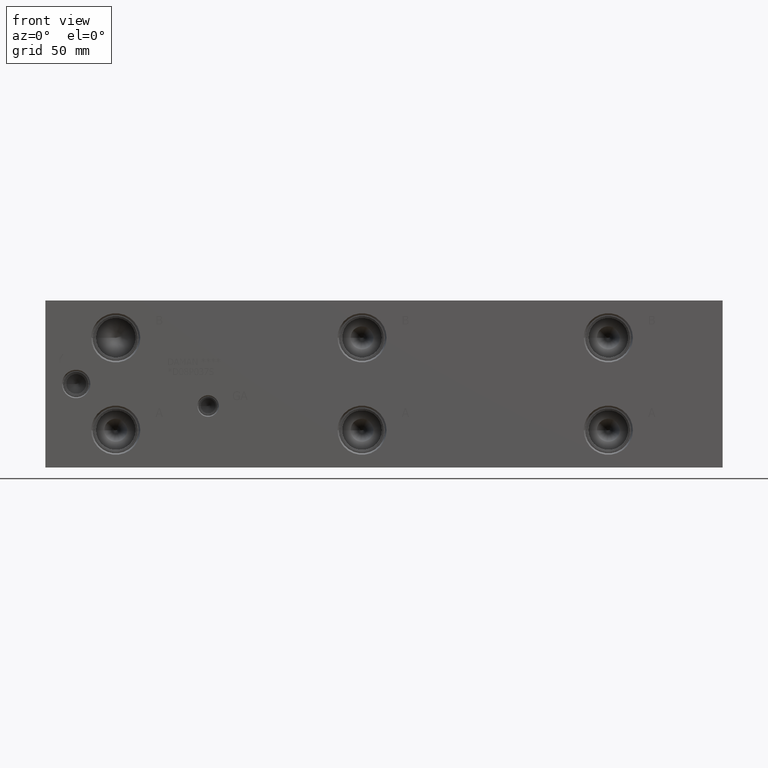
[diagram: clean part render]
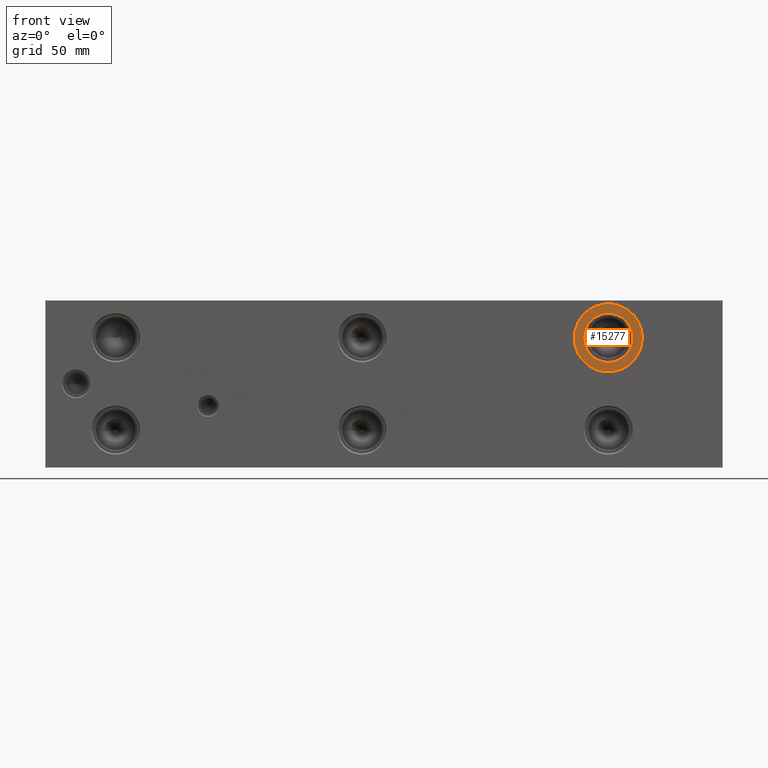
[diagram: same view with one face highlighted and labeled with its STEP entity id]
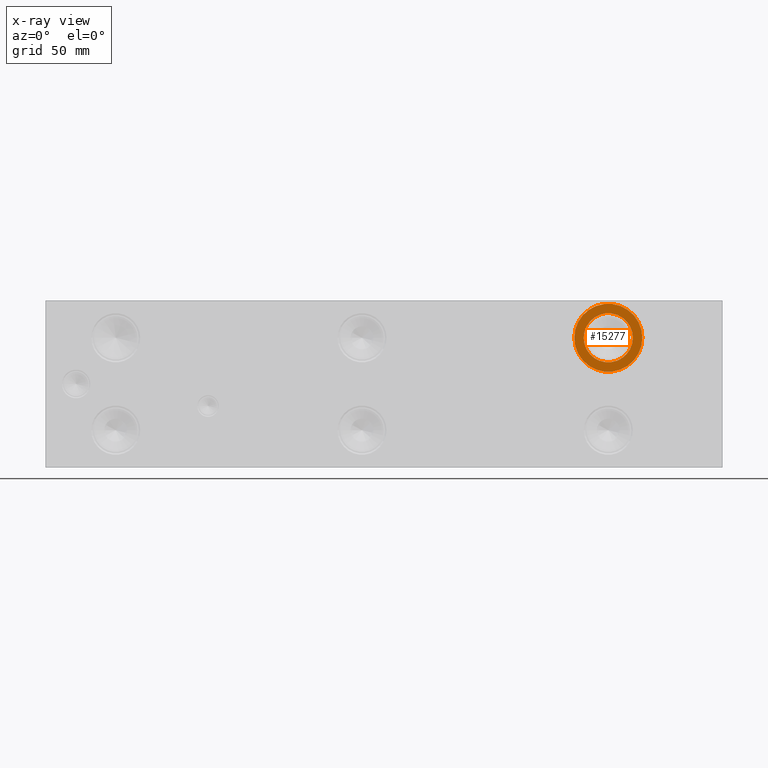
[diagram: x-ray of the same camera — body ghosted, the highlighted face saturated]
A machine part, front view. The second image highlights one B-rep face of the part: STEP entity #15277.
The next image is the same camera in x-ray: the body ghosted, the highlighted face saturated — about 0% of this face is hidden behind the body in this view.
In plain terms, the highlighted planar face has unit normal (0, -1, 0).
Its self-contained STEP definition (entity closure, byte-faithful):
#492=CIRCLE('',#16172,24.5618);
#493=CIRCLE('',#16173,24.5618);
#494=CIRCLE('',#16174,17.7546);
#815=FACE_BOUND('',#2845,.T.);
#1250=PLANE('',#16171);
#1945=FACE_OUTER_BOUND('',#2844,.T.);
#2844=EDGE_LOOP('',(#13174,#13175));
#2845=EDGE_LOOP('',(#13176));
#7239=VERTEX_POINT('',#26021);
#7240=VERTEX_POINT('',#26022);
#7241=VERTEX_POINT('',#26025);
#9304=EDGE_CURVE('',#7239,#7240,#492,.T.);
#9305=EDGE_CURVE('',#7240,#7239,#493,.T.);
#9306=EDGE_CURVE('',#7241,#7241,#494,.T.);
#13174=ORIENTED_EDGE('',*,*,#9304,.T.);
#13175=ORIENTED_EDGE('',*,*,#9305,.T.);
#13176=ORIENTED_EDGE('',*,*,#9306,.F.);
#15277=ADVANCED_FACE('',(#1945,#815),#1250,.T.);
#16171=AXIS2_PLACEMENT_3D('',#26020,#19218,#19219);
#16172=AXIS2_PLACEMENT_3D('',#26023,#19220,#19221);
#16173=AXIS2_PLACEMENT_3D('',#26024,#19222,#19223);
#16174=AXIS2_PLACEMENT_3D('',#26026,#19224,#19225);
#19218=DIRECTION('center_axis',(0.,-1.,0.));
#19219=DIRECTION('ref_axis',(1.,0.,0.));
#19220=DIRECTION('center_axis',(0.,-1.,0.));
#19221=DIRECTION('ref_axis',(1.,0.,0.));
#19222=DIRECTION('center_axis',(0.,-1.,0.));
#19223=DIRECTION('ref_axis',(1.,0.,0.));
#19224=DIRECTION('center_axis',(0.,-1.,0.));
#19225=DIRECTION('ref_axis',(1.,0.,0.));
#26020=CARTESIAN_POINT('Origin',(406.4,0.7874,93.6752));
#26021=CARTESIAN_POINT('',(430.9618,0.7874,93.6752));
#26022=CARTESIAN_POINT('',(381.8382,0.7874,93.6752));
#26023=CARTESIAN_POINT('Origin',(406.4,0.7874,93.6752));
#26024=CARTESIAN_POINT('Origin',(406.4,0.7874,93.6752));
#26025=CARTESIAN_POINT('',(388.6454,0.7874,93.6752));
#26026=CARTESIAN_POINT('Origin',(406.4,0.7874,93.6752));